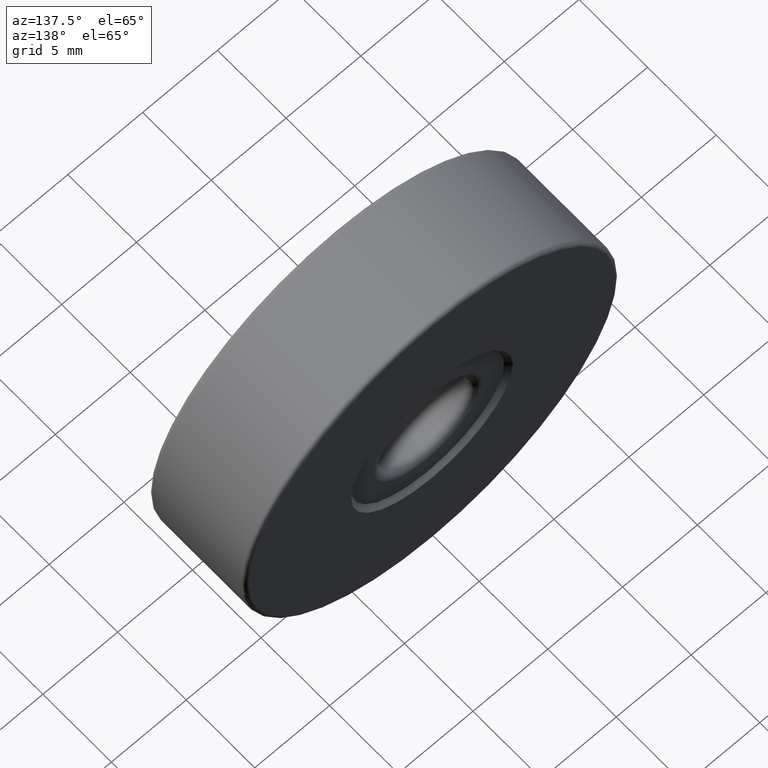
[diagram: clean part render]
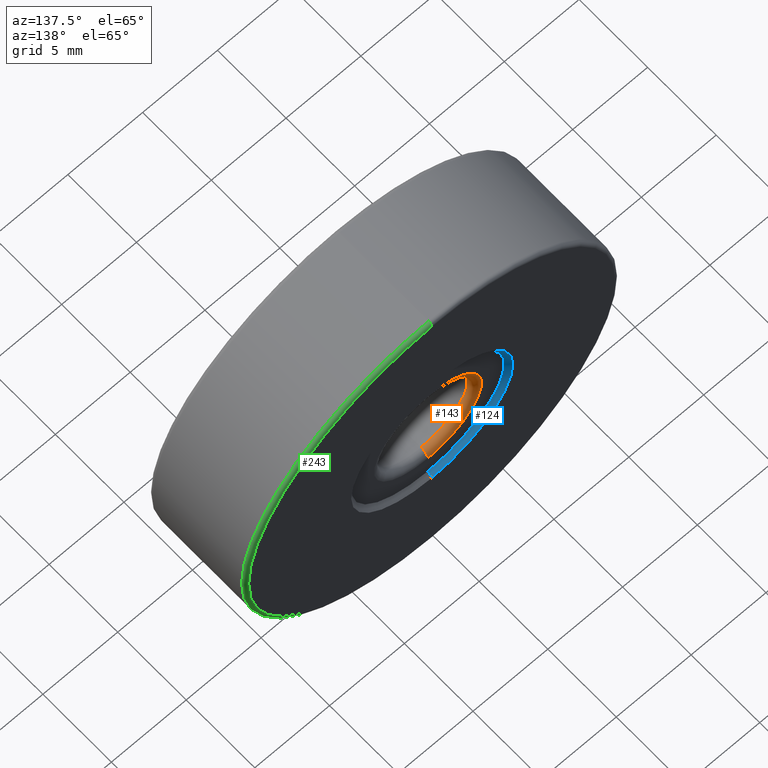
[diagram: same view with three faces highlighted in distinct colors, each labeled with its STEP entity id]
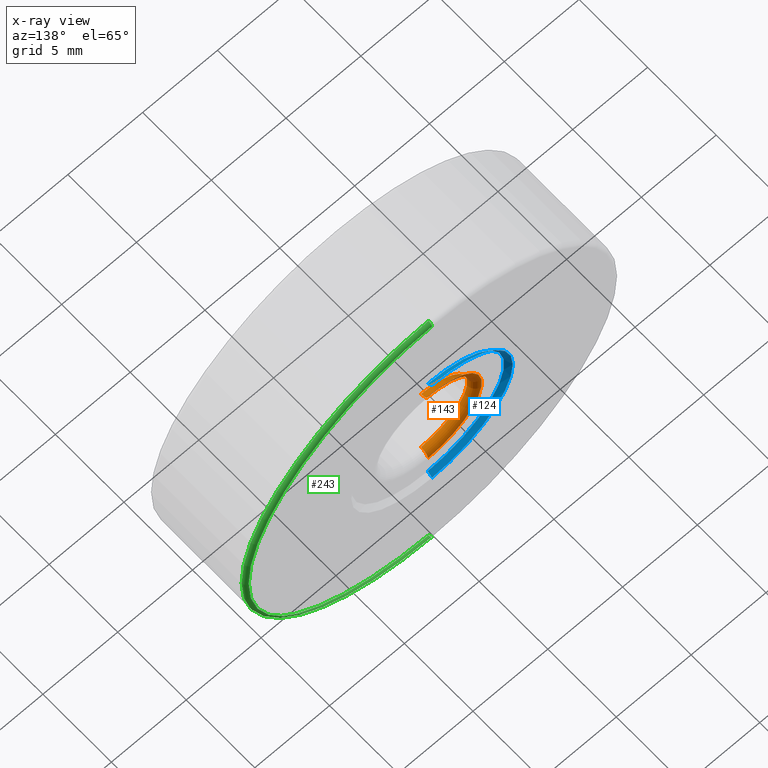
[diagram: x-ray of the same camera — body ghosted, the three highlighted faces saturated]
A machine part, auxiliary view with three faces highlighted in distinct colors.
The next image is the same camera in x-ray (body ghosted, the three faces saturated) — at least one of them is partly hidden behind the body in this view.
Their STEP definitions:

[orange] entity #143 — the highlighted toroidal blend (fillet) surface has major radius 3.6 mm and minor (blend) radius 0.5 mm.
#7 = CIRCLE ( 'NONE', #170, 3.599999999999999201 ) ;
#8 = EDGE_LOOP ( 'NONE', ( #39, #491, #521, #29 ) ) ;
#10 = DIRECTION ( 'NONE',  ( -0.0000000000000000000, -1.000000000000000000, -0.0000000000000000000 ) ) ;
#29 = ORIENTED_EDGE ( 'NONE', *, *, #538, .F. ) ;
#39 = ORIENTED_EDGE ( 'NONE', *, *, #501, .F. ) ;
#50 = FACE_OUTER_BOUND ( 'NONE', #8, .T. ) ;
#120 = DIRECTION ( 'NONE',  ( -1.000000000000000000, 0.0000000000000000000, 0.0000000000000000000 ) ) ;
#135 = CARTESIAN_POINT ( 'NONE',  ( -4.682026255059963837, 1.605024023001725642, 21.40000000000000213 ) ) ;
#138 = DIRECTION ( 'NONE',  ( 0.0000000000000000000, 1.000000000000000000, 0.0000000000000000000 ) ) ;
#143 = ADVANCED_FACE ( 'NONE', ( #50 ), #277, .T. ) ;
#162 = CIRCLE ( 'NONE', #601, 3.099999999999998757 ) ;
#170 = AXIS2_PLACEMENT_3D ( 'NONE', #309, #10, #343 ) ;
#172 = CARTESIAN_POINT ( 'NONE',  ( -4.682026255059964726, 1.105024023001725864, 25.00000000000000000 ) ) ;
#181 = DIRECTION ( 'NONE',  ( 0.0000000000000000000, 0.0000000000000000000, 1.000000000000000000 ) ) ;
#182 = VERTEX_POINT ( 'NONE', #135 ) ;
#234 = CIRCLE ( 'NONE', #593, 0.5000000000000004441 ) ;
#259 = VERTEX_POINT ( 'NONE', #448 ) ;
#265 = CARTESIAN_POINT ( 'NONE',  ( -4.682026255059964726, 1.105024023001725864, 28.60000000000000142 ) ) ;
#268 = AXIS2_PLACEMENT_3D ( 'NONE', #265, #120, #181 ) ;
#277 = TOROIDAL_SURFACE ( 'NONE', #583, 3.600000000000000089, 0.5000000000000000000 ) ;
#299 = CIRCLE ( 'NONE', #268, 0.5000000000000004441 ) ;
#309 = CARTESIAN_POINT ( 'NONE',  ( -4.682026255059964726, 1.605024023001725419, 25.00000000000000000 ) ) ;
#313 = VERTEX_POINT ( 'NONE', #387 ) ;
#343 = DIRECTION ( 'NONE',  ( 0.0000000000000000000, 0.0000000000000000000, 1.000000000000000000 ) ) ;
#344 = EDGE_CURVE ( 'NONE', #466, #182, #7, .T. ) ;
#367 = DIRECTION ( 'NONE',  ( 0.0000000000000000000, 0.0000000000000000000, -1.000000000000000000 ) ) ;
#387 = CARTESIAN_POINT ( 'NONE',  ( -4.682026255059964726, 1.105024023001725864, 28.10000000000000142 ) ) ;
#448 = CARTESIAN_POINT ( 'NONE',  ( -4.682026255059964726, 1.105024023001725864, 21.90000000000000213 ) ) ;
#457 = DIRECTION ( 'NONE',  ( 1.000000000000000000, -0.0000000000000000000, 1.224646799147353207E-16 ) ) ;
#466 = VERTEX_POINT ( 'NONE', #553 ) ;
#467 = EDGE_CURVE ( 'NONE', #466, #313, #299, .T. ) ;
#472 = DIRECTION ( 'NONE',  ( 0.0000000000000000000, 0.0000000000000000000, 1.000000000000000000 ) ) ;
#491 = ORIENTED_EDGE ( 'NONE', *, *, #344, .F. ) ;
#501 = EDGE_CURVE ( 'NONE', #182, #259, #234, .T. ) ;
#521 = ORIENTED_EDGE ( 'NONE', *, *, #467, .T. ) ;
#538 = EDGE_CURVE ( 'NONE', #259, #313, #162, .T. ) ;
#545 = DIRECTION ( 'NONE',  ( 0.0000000000000000000, 1.000000000000000000, 0.0000000000000000000 ) ) ;
#547 = DIRECTION ( 'NONE',  ( 0.0000000000000000000, 0.0000000000000000000, 1.000000000000000000 ) ) ;
#549 = CARTESIAN_POINT ( 'NONE',  ( -4.682026255059963837, 1.105024023001725864, 21.40000000000000213 ) ) ;
#553 = CARTESIAN_POINT ( 'NONE',  ( -4.682026255059964726, 1.605024023001725642, 28.60000000000000142 ) ) ;
#583 = AXIS2_PLACEMENT_3D ( 'NONE', #614, #138, #472 ) ;
#593 = AXIS2_PLACEMENT_3D ( 'NONE', #549, #457, #367 ) ;
#601 = AXIS2_PLACEMENT_3D ( 'NONE', #172, #545, #547 ) ;
#614 = CARTESIAN_POINT ( 'NONE',  ( -4.682026255059964726, 1.105024023001725864, 25.00000000000000000 ) ) ;

[blue] entity #124 — the highlighted conical surface has half-angle 45 deg.
#44 = AXIS2_PLACEMENT_3D ( 'NONE', #536, #497, #157 ) ;
#47 = FACE_OUTER_BOUND ( 'NONE', #215, .T. ) ;
#53 = VERTEX_POINT ( 'NONE', #79 ) ;
#79 = CARTESIAN_POINT ( 'NONE',  ( -4.682026255059964726, 1.905024023001725242, 30.39999999999999503 ) ) ;
#95 = VECTOR ( 'NONE', #248, 1000.000000000000000 ) ;
#121 = ORIENTED_EDGE ( 'NONE', *, *, #353, .F. ) ;
#124 = ADVANCED_FACE ( 'NONE', ( #47 ), #127, .F. ) ;
#127 = CONICAL_SURFACE ( 'NONE', #485, 5.100000000000000533, 0.7853981633974526089 ) ;
#144 = ORIENTED_EDGE ( 'NONE', *, *, #451, .F. ) ;
#157 = DIRECTION ( 'NONE',  ( 0.0000000000000000000, 0.0000000000000000000, 1.000000000000000000 ) ) ;
#175 = DIRECTION ( 'NONE',  ( 8.659560562354969836E-17, 0.7071067811865444641, -0.7071067811865505703 ) ) ;
#186 = ORIENTED_EDGE ( 'NONE', *, *, #294, .F. ) ;
#194 = DIRECTION ( 'NONE',  ( 0.0000000000000000000, 0.0000000000000000000, 1.000000000000000000 ) ) ;
#205 = CARTESIAN_POINT ( 'NONE',  ( -4.682026255059964726, 1.605024023001732303, 30.10000000000000142 ) ) ;
#215 = EDGE_LOOP ( 'NONE', ( #144, #518, #186, #121 ) ) ;
#248 = DIRECTION ( 'NONE',  ( 0.0000000000000000000, 0.7071067811865444641, 0.7071067811865505703 ) ) ;
#263 = LINE ( 'NONE', #316, #535 ) ;
#294 = EDGE_CURVE ( 'NONE', #53, #398, #317, .T. ) ;
#304 = CARTESIAN_POINT ( 'NONE',  ( -4.682026255059964726, 1.605024023001725419, 30.10000000000000142 ) ) ;
#314 = DIRECTION ( 'NONE',  ( 0.0000000000000000000, 1.000000000000000000, 0.0000000000000000000 ) ) ;
#316 = CARTESIAN_POINT ( 'NONE',  ( -4.682026255059963837, 1.605024023001732303, 19.90000000000000213 ) ) ;
#317 = CIRCLE ( 'NONE', #44, 5.399999999999995026 ) ;
#340 = LINE ( 'NONE', #205, #95 ) ;
#353 = EDGE_CURVE ( 'NONE', #365, #53, #340, .T. ) ;
#363 = DIRECTION ( 'NONE',  ( 0.0000000000000000000, 0.0000000000000000000, 1.000000000000000000 ) ) ;
#365 = VERTEX_POINT ( 'NONE', #304 ) ;
#398 = VERTEX_POINT ( 'NONE', #499 ) ;
#403 = CARTESIAN_POINT ( 'NONE',  ( -4.682026255059964726, 1.605024023001725419, 25.00000000000000000 ) ) ;
#422 = DIRECTION ( 'NONE',  ( 0.0000000000000000000, 1.000000000000000000, 0.0000000000000000000 ) ) ;
#451 = EDGE_CURVE ( 'NONE', #554, #365, #496, .T. ) ;
#461 = CARTESIAN_POINT ( 'NONE',  ( -4.682026255059963837, 1.605024023001725419, 19.90000000000000213 ) ) ;
#485 = AXIS2_PLACEMENT_3D ( 'NONE', #526, #422, #194 ) ;
#496 = CIRCLE ( 'NONE', #563, 5.100000000000000533 ) ;
#497 = DIRECTION ( 'NONE',  ( -0.0000000000000000000, -1.000000000000000000, -0.0000000000000000000 ) ) ;
#499 = CARTESIAN_POINT ( 'NONE',  ( -4.682026255059963837, 1.905024023001725242, 19.60000000000000497 ) ) ;
#518 = ORIENTED_EDGE ( 'NONE', *, *, #544, .T. ) ;
#526 = CARTESIAN_POINT ( 'NONE',  ( -4.682026255059964726, 1.605024023001732303, 25.00000000000000000 ) ) ;
#535 = VECTOR ( 'NONE', #175, 1000.000000000000000 ) ;
#536 = CARTESIAN_POINT ( 'NONE',  ( -4.682026255059964726, 1.905024023001725242, 25.00000000000000000 ) ) ;
#544 = EDGE_CURVE ( 'NONE', #554, #398, #263, .T. ) ;
#554 = VERTEX_POINT ( 'NONE', #461 ) ;
#563 = AXIS2_PLACEMENT_3D ( 'NONE', #403, #314, #363 ) ;

[green] entity #243 — the highlighted toroidal blend (fillet) surface has major radius 12.25 mm and minor (blend) radius 0.25 mm.
#26 = CIRCLE ( 'NONE', #408, 12.50000000000000355 ) ;
#33 = DIRECTION ( 'NONE',  ( 1.000000000000000000, -0.0000000000000000000, 1.224646799147353207E-16 ) ) ;
#57 = VERTEX_POINT ( 'NONE', #462 ) ;
#61 = EDGE_CURVE ( 'NONE', #533, #57, #385, .T. ) ;
#72 = DIRECTION ( 'NONE',  ( 0.0000000000000000000, 0.0000000000000000000, 1.000000000000000000 ) ) ;
#105 = CARTESIAN_POINT ( 'NONE',  ( -4.682026255059964726, 1.655024023001725464, 37.25000000000000711 ) ) ;
#122 = CARTESIAN_POINT ( 'NONE',  ( -4.682026255059964726, 1.655024023001725464, 25.00000000000000000 ) ) ;
#163 = ORIENTED_EDGE ( 'NONE', *, *, #455, .F. ) ;
#164 = DIRECTION ( 'NONE',  ( 0.0000000000000000000, 0.0000000000000000000, 1.000000000000000000 ) ) ;
#166 = CARTESIAN_POINT ( 'NONE',  ( -4.682026255059962949, 1.655024023001725464, 12.50000000000000000 ) ) ;
#185 = CARTESIAN_POINT ( 'NONE',  ( -4.682026255059964726, 1.905024023001725242, 25.00000000000000000 ) ) ;
#213 = VERTEX_POINT ( 'NONE', #397 ) ;
#214 = DIRECTION ( 'NONE',  ( 0.0000000000000000000, 0.0000000000000000000, -1.000000000000000000 ) ) ;
#233 = TOROIDAL_SURFACE ( 'NONE', #524, 12.25000000000000000, 0.2500000000000000000 ) ;
#243 = ADVANCED_FACE ( 'NONE', ( #434 ), #233, .T. ) ;
#247 = CIRCLE ( 'NONE', #373, 0.2500000000000002220 ) ;
#270 = CARTESIAN_POINT ( 'NONE',  ( -4.682026255059964726, 1.905024023001725242, 37.25000000000000711 ) ) ;
#273 = DIRECTION ( 'NONE',  ( -0.0000000000000000000, -1.000000000000000000, -0.0000000000000000000 ) ) ;
#320 = EDGE_CURVE ( 'NONE', #213, #533, #600, .T. ) ;
#321 = CARTESIAN_POINT ( 'NONE',  ( -4.682026255059962949, 1.655024023001725464, 12.75000000000000178 ) ) ;
#335 = AXIS2_PLACEMENT_3D ( 'NONE', #105, #588, #539 ) ;
#341 = VERTEX_POINT ( 'NONE', #166 ) ;
#345 = ORIENTED_EDGE ( 'NONE', *, *, #473, .T. ) ;
#373 = AXIS2_PLACEMENT_3D ( 'NONE', #321, #33, #214 ) ;
#385 = CIRCLE ( 'NONE', #559, 12.25000000000000355 ) ;
#389 = CARTESIAN_POINT ( 'NONE',  ( -4.682026255059964726, 1.655024023001725464, 25.00000000000000000 ) ) ;
#397 = CARTESIAN_POINT ( 'NONE',  ( -4.682026255059964726, 1.655024023001725464, 37.50000000000000711 ) ) ;
#401 = ORIENTED_EDGE ( 'NONE', *, *, #61, .F. ) ;
#408 = AXIS2_PLACEMENT_3D ( 'NONE', #122, #273, #72 ) ;
#428 = DIRECTION ( 'NONE',  ( 0.0000000000000000000, 0.0000000000000000000, 1.000000000000000000 ) ) ;
#432 = EDGE_LOOP ( 'NONE', ( #163, #345, #401, #484 ) ) ;
#434 = FACE_OUTER_BOUND ( 'NONE', #432, .T. ) ;
#455 = EDGE_CURVE ( 'NONE', #341, #213, #26, .T. ) ;
#462 = CARTESIAN_POINT ( 'NONE',  ( -4.682026255059962949, 1.905024023001725242, 12.75000000000000178 ) ) ;
#473 = EDGE_CURVE ( 'NONE', #341, #57, #247, .T. ) ;
#484 = ORIENTED_EDGE ( 'NONE', *, *, #320, .F. ) ;
#513 = DIRECTION ( 'NONE',  ( 0.0000000000000000000, 1.000000000000000000, 0.0000000000000000000 ) ) ;
#524 = AXIS2_PLACEMENT_3D ( 'NONE', #389, #585, #164 ) ;
#533 = VERTEX_POINT ( 'NONE', #270 ) ;
#539 = DIRECTION ( 'NONE',  ( 0.0000000000000000000, 0.0000000000000000000, 1.000000000000000000 ) ) ;
#559 = AXIS2_PLACEMENT_3D ( 'NONE', #185, #513, #428 ) ;
#585 = DIRECTION ( 'NONE',  ( 0.0000000000000000000, 1.000000000000000000, 0.0000000000000000000 ) ) ;
#588 = DIRECTION ( 'NONE',  ( -1.000000000000000000, 0.0000000000000000000, 0.0000000000000000000 ) ) ;
#600 = CIRCLE ( 'NONE', #335, 0.2500000000000002220 ) ;